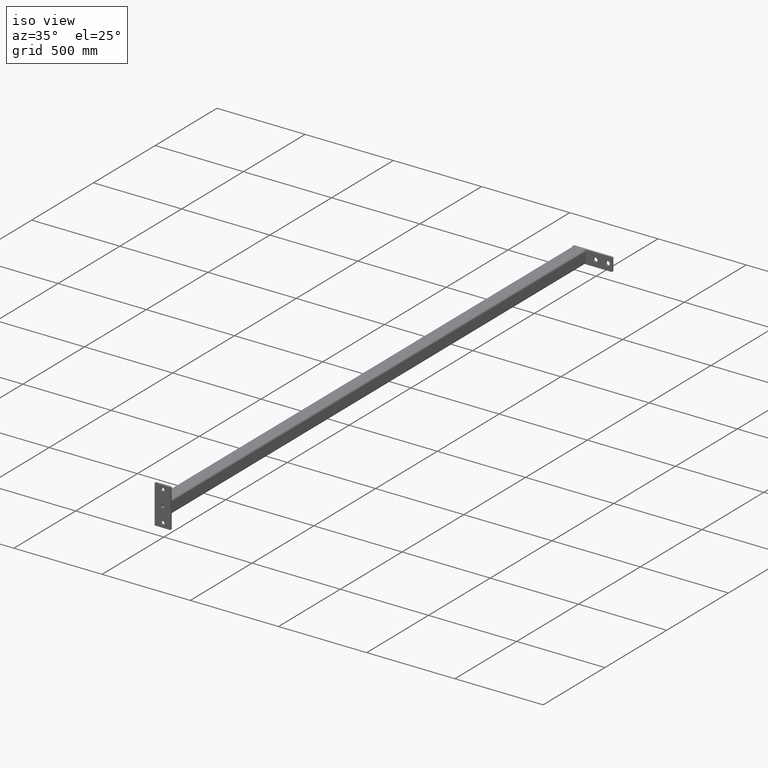
[diagram: clean part render]
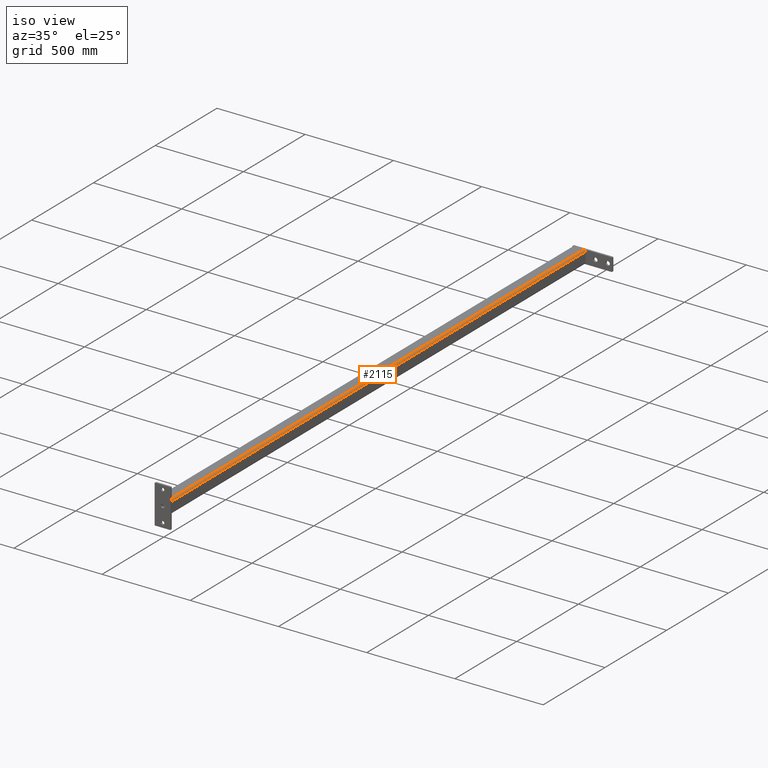
[diagram: same view with one face highlighted and labeled with its STEP entity id]
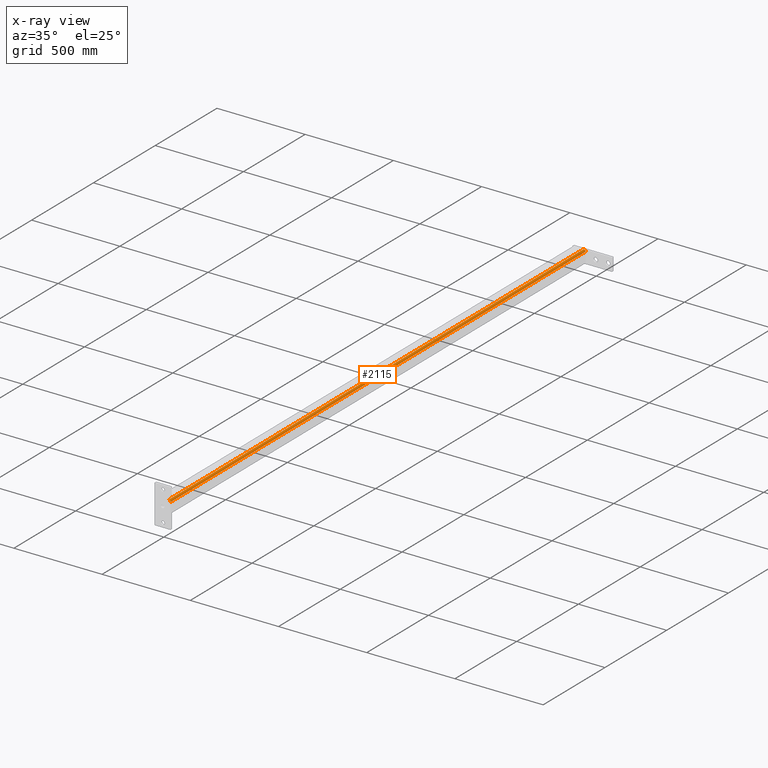
[diagram: x-ray of the same camera — body ghosted, the highlighted face saturated]
A machine part, iso view. The second image highlights one B-rep face of the part: STEP entity #2115.
The next image is the same camera in x-ray: the body ghosted, the highlighted face saturated — about 0% of this face is hidden behind the body in this view.
In plain terms, the highlighted cylindrical surface (edge-blend (fillet) strip) has radius 10 mm, axis along (0, 1, 0).
Its self-contained STEP definition (entity closure, byte-faithful):
#92 = DIRECTION ( 'NONE',  ( 1.000000000000000000, 3.061616997868382648E-16, -0.000000000000000000 ) ) ;
#228 = CARTESIAN_POINT ( 'NONE',  ( -1680.500000000000000, 37.49999999999961631, -27.50000000000010303 ) ) ;
#266 = AXIS2_PLACEMENT_3D ( 'NONE', #2302, #2350, #707 ) ;
#279 = LINE ( 'NONE', #1538, #367 ) ;
#291 = VERTEX_POINT ( 'NONE', #228 ) ;
#318 = ORIENTED_EDGE ( 'NONE', *, *, #2023, .T. ) ;
#340 = DIRECTION ( 'NONE',  ( 0.000000000000000000, -1.000000000000000000, 0.000000000000000000 ) ) ;
#367 = VECTOR ( 'NONE', #1177, 1000.000000000000000 ) ;
#426 = DIRECTION ( 'NONE',  ( -1.000000000000000000, -3.061616997868382648E-16, 0.000000000000000000 ) ) ;
#560 = CARTESIAN_POINT ( 'NONE',  ( -1680.500000000000000, 27.49999999999961631, -37.50000000000011369 ) ) ;
#595 = CIRCLE ( 'NONE', #1736, 10.00000000000001243 ) ;
#599 = VECTOR ( 'NONE', #92, 1000.000000000000000 ) ;
#601 = EDGE_CURVE ( 'NONE', #1408, #2313, #279, .T. ) ;
#615 = CARTESIAN_POINT ( 'NONE',  ( 1680.500000000000000, 27.50000000000064659, -37.50000000000011369 ) ) ;
#707 = DIRECTION ( 'NONE',  ( 0.000000000000000000, 1.000000000000000000, 0.000000000000000000 ) ) ;
#728 = DIRECTION ( 'NONE',  ( 0.000000000000000000, -1.000000000000000000, 0.000000000000000000 ) ) ;
#839 = FACE_OUTER_BOUND ( 'NONE', #1612, .T. ) ;
#889 = CYLINDRICAL_SURFACE ( 'NONE', #266, 10.00000000000001243 ) ;
#892 = ORIENTED_EDGE ( 'NONE', *, *, #601, .F. ) ;
#934 = VERTEX_POINT ( 'NONE', #1684 ) ;
#1002 = LINE ( 'NONE', #1727, #599 ) ;
#1058 = EDGE_CURVE ( 'NONE', #291, #1408, #595, .T. ) ;
#1065 = ORIENTED_EDGE ( 'NONE', *, *, #1058, .F. ) ;
#1176 = AXIS2_PLACEMENT_3D ( 'NONE', #1926, #1221, #340 ) ;
#1177 = DIRECTION ( 'NONE',  ( 1.000000000000000000, 3.061616997868382648E-16, -0.000000000000000000 ) ) ;
#1189 = EDGE_CURVE ( 'NONE', #291, #934, #1002, .T. ) ;
#1207 = CIRCLE ( 'NONE', #1176, 10.00000000000001599 ) ;
#1221 = DIRECTION ( 'NONE',  ( -1.000000000000000000, -3.061616997868382648E-16, 0.000000000000000000 ) ) ;
#1354 = ORIENTED_EDGE ( 'NONE', *, *, #1189, .T. ) ;
#1408 = VERTEX_POINT ( 'NONE', #560 ) ;
#1538 = CARTESIAN_POINT ( 'NONE',  ( -1680.500000000000000, 27.49999999999961631, -37.50000000000011369 ) ) ;
#1612 = EDGE_LOOP ( 'NONE', ( #318, #892, #1065, #1354 ) ) ;
#1684 = CARTESIAN_POINT ( 'NONE',  ( 1680.500000000000000, 37.50000000000064659, -27.50000000000010303 ) ) ;
#1727 = CARTESIAN_POINT ( 'NONE',  ( -1680.500000000000000, 37.49999999999961631, -27.50000000000010303 ) ) ;
#1736 = AXIS2_PLACEMENT_3D ( 'NONE', #2060, #426, #728 ) ;
#1926 = CARTESIAN_POINT ( 'NONE',  ( 1680.500000000000000, 27.50000000000064304, -27.50000000000010303 ) ) ;
#2023 = EDGE_CURVE ( 'NONE', #934, #2313, #1207, .T. ) ;
#2060 = CARTESIAN_POINT ( 'NONE',  ( -1680.500000000000000, 27.49999999999961275, -27.50000000000010303 ) ) ;
#2115 = ADVANCED_FACE ( 'NONE', ( #839 ), #889, .T. ) ;
#2302 = CARTESIAN_POINT ( 'NONE',  ( -1680.500000000000000, 27.49999999999961275, -27.50000000000010303 ) ) ;
#2313 = VERTEX_POINT ( 'NONE', #615 ) ;
#2350 = DIRECTION ( 'NONE',  ( 1.000000000000000000, 3.061616997868382648E-16, -0.000000000000000000 ) ) ;